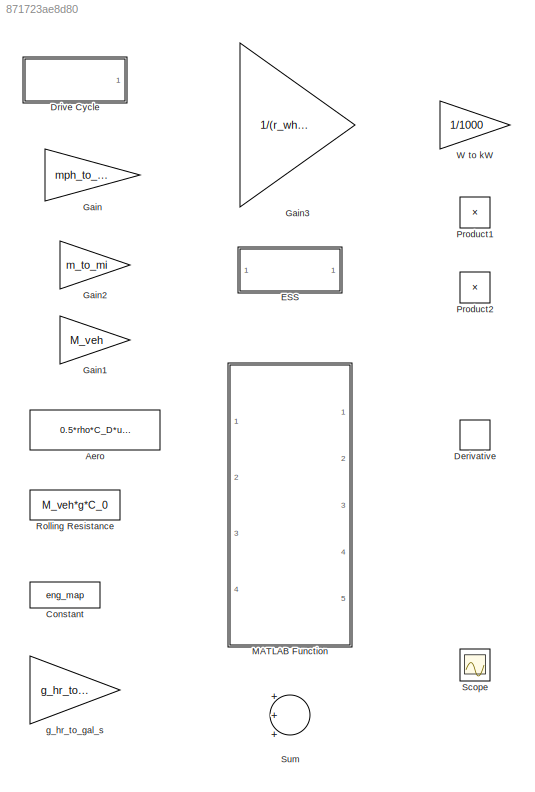
MODEL slx_871723ae8d80
KIND library
CONFIG AbsTol = auto
CONFIG EnableMultiTasking = on
CONFIG FixedStep = auto
CONFIG MaxStep = auto
CONFIG MinStep = auto
CONFIG RelTol = 1e-3
CONFIG SampleTimeConstraint = Unconstrained
CONFIG Solver = VariableStepAuto
CONFIG SolverName = VariableStepAuto
CONFIG StartTime = 0.0
CONFIG StopTime = 10.0
BLOCK [Fcn] Aero
  Expr = 0.5*rho*C_D*u(1)^2
BLOCK [Constant] Constant
  Value = eng_map
BLOCK [Derivative] Derivative
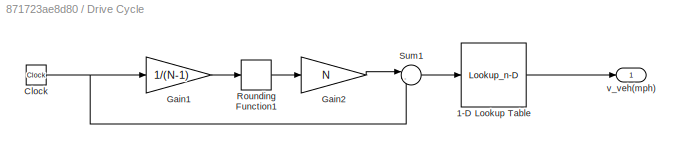
BLOCK [SubSystem] Drive Cycle
  Ports = [0, 1]
  RequestExecContextInheritance = off
BLOCK [Lookup_n-D] Drive Cycle/1-D Lookup Table
  BreakpointsForDimension1 = schedule(:,1)
  InternalRulePriority = Speed
  NumberOfTableDimensions = 1
  Ports = [1, 1]
  RndMeth = Simplest
  Table = schedule(:,2)
BLOCK [Clock] Drive Cycle/Clock
BLOCK [Gain] Drive Cycle/Gain1
  Gain = 1/(N-1)
  OutDataTypeStr = Inherit: Inherit via internal rule
  ParamDataTypeStr = Inherit: Inherit via internal rule
  SaturateOnIntegerOverflow = off
BLOCK [Gain] Drive Cycle/Gain2
  Gain = N
  OutDataTypeStr = Inherit: Inherit via internal rule
  ParamDataTypeStr = Inherit: Inherit via internal rule
  SaturateOnIntegerOverflow = off
BLOCK [Rounding] Drive Cycle/Rounding Function1
BLOCK [Sum] Drive Cycle/Sum1
  IconShape = round
  InputSameDT = off
  Inputs = |-+
  OutDataTypeStr = Inherit: Inherit via internal rule
  Ports = [2, 1]
  SaturateOnIntegerOverflow = off
BLOCK [Outport] Drive Cycle/v_veh(mph)
  IconDisplay = Port number
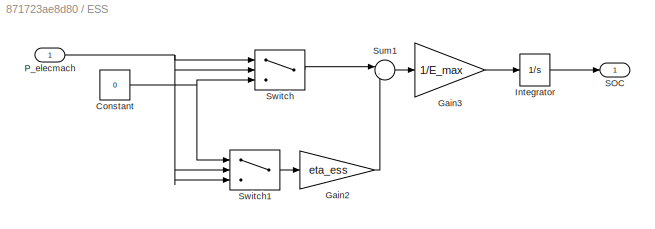
BLOCK [SubSystem] ESS
  Ports = [1, 1]
  RequestExecContextInheritance = off
BLOCK [Constant] ESS/Constant
  Value = 0
BLOCK [Gain] ESS/Gain2
  Gain = eta_ess
  OutDataTypeStr = Inherit: Inherit via internal rule
  ParamDataTypeStr = Inherit: Inherit via internal rule
  SaturateOnIntegerOverflow = off
BLOCK [Gain] ESS/Gain3
  Gain = 1/E_max
  OutDataTypeStr = fixdt('double', 'DataTypeOverride', 'Off')
  ParamDataTypeStr = Inherit: Inherit via internal rule
  SaturateOnIntegerOverflow = off
BLOCK [Integrator] ESS/Integrator
  InitialCondition = SOC_init
  LimitOutput = on
  LowerSaturationLimit = 0
  Ports = [1, 1]
  UpperSaturationLimit = 1
BLOCK [Inport] ESS/P_elecmach
  IconDisplay = Port number
BLOCK [Outport] ESS/SOC
  IconDisplay = Port number
BLOCK [Sum] ESS/Sum1
  IconShape = round
  InputSameDT = off
  Inputs = |--
  OutDataTypeStr = Inherit: Inherit via internal rule
  Ports = [2, 1]
  SaturateOnIntegerOverflow = off
BLOCK [Switch] ESS/Switch
  InputSameDT = off
  OutDataTypeStr = double
  SaturateOnIntegerOverflow = off
BLOCK [Switch] ESS/Switch1
  InputSameDT = off
  OutDataTypeStr = double
  SaturateOnIntegerOverflow = off
BLOCK [Gain] Gain
  Gain = mph_to_mps
  OutDataTypeStr = Inherit: Inherit via internal rule
  ParamDataTypeStr = Inherit: Inherit via internal rule
  SaturateOnIntegerOverflow = off
BLOCK [Gain] Gain1
  Gain = M_veh
  OutDataTypeStr = Inherit: Inherit via internal rule
  ParamDataTypeStr = Inherit: Inherit via internal rule
  SaturateOnIntegerOverflow = off
BLOCK [Gain] Gain2
  Gain = m_to_mi
  OutDataTypeStr = Inherit: Inherit via internal rule
  ParamDataTypeStr = Inherit: Inherit via internal rule
  SaturateOnIntegerOverflow = off
BLOCK [Gain] Gain3
  Gain = 1/(r_wheel*G_diff)
  OutDataTypeStr = Inherit: Inherit via internal rule
  ParamDataTypeStr = Inherit: Inherit via internal rule
  SaturateOnIntegerOverflow = off
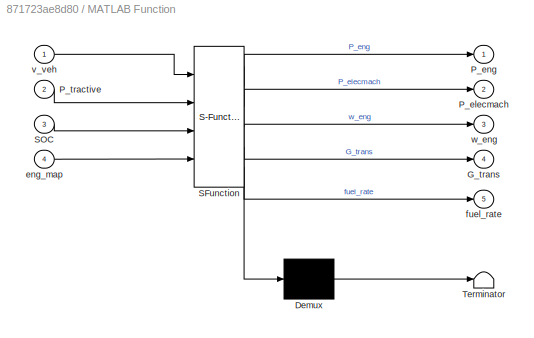
BLOCK [SubSystem] MATLAB Function
  ErrorFcn = Stateflow.Translate.translate
  PermitHierarchicalResolution = ExplicitOnly
  Ports = [4, 5]
  RequestExecContextInheritance = off
  SFBlockType = MATLAB Function
  TreatAsAtomicUnit = on
BLOCK [Demux] MATLAB Function/ Demux 
  Outputs = 1
  Ports = [1, 1]
BLOCK [S-Function] MATLAB Function/ SFunction 
  EnableBusSupport = on
  FunctionName = sf_sfun
  PortCounts = [4 6]
  Ports = [4, 6]
  SFcnIsStateOwnerBlock = off
  SFunctionDeploymentMode = off
  Tag = Stateflow S-Function p1lib 2
BLOCK [Terminator] MATLAB Function/ Terminator 
BLOCK [Outport] MATLAB Function/G_trans
  IconDisplay = Port number
  Port = 4
BLOCK [Outport] MATLAB Function/P_elecmach
  IconDisplay = Port number
  Port = 2
BLOCK [Outport] MATLAB Function/P_eng
  IconDisplay = Port number
BLOCK [Inport] MATLAB Function/P_tractive
  IconDisplay = Port number
  Port = 2
BLOCK [Inport] MATLAB Function/SOC
  IconDisplay = Port number
  Port = 3
BLOCK [Inport] MATLAB Function/eng_map
  IconDisplay = Port number
  Port = 4
BLOCK [Outport] MATLAB Function/fuel_rate
  IconDisplay = Port number
  Port = 5
BLOCK [Inport] MATLAB Function/v_veh
  IconDisplay = Port number
BLOCK [Outport] MATLAB Function/w_eng
  IconDisplay = Port number
  Port = 3
BLOCK [Product] Product1
  InputSameDT = off
  OutDataTypeStr = Inherit: Inherit via internal rule
  Ports = [2, 1]
  RndMeth = Floor
  SaturateOnIntegerOverflow = off
BLOCK [Product] Product2
  InputSameDT = off
  Inputs = */
  OutDataTypeStr = Inherit: Inherit via internal rule
  Ports = [2, 1]
  RndMeth = Floor
  SaturateOnIntegerOverflow = off
BLOCK [Constant] Rolling Resistance
  Value = M_veh*g*C_0
BLOCK [Scope] Scope
  Floating = off
  NumInputPorts = 1
  Ports = [1]
  ScopeSpecificationString = Simulink.scopes.TimeScopeBlockCfg('CurrentConfiguration', extmgr.ConfigurationSet(extmgr.Configuration('Core','General UI',true),extmgr.Configuration('Core','Source UI',true),extmgr.Configuration('Sources','WiredSimulink',true,'DataLoggingSaveFormat','StructureWithTime','DataLoggingDecimation','1','DataLoggingDecimateData',true,'DataLogging',true),extmgr.Configuration('Visuals','Time Domain',true,...<+1719ch>
BLOCK [Sum] Sum
  InputSameDT = off
  Inputs = +++
  OutDataTypeStr = Inherit: Inherit via internal rule
  Ports = [3, 1]
  SaturateOnIntegerOverflow = off
BLOCK [Gain] W to kW
  Gain = 1/1000
  OutDataTypeStr = Inherit: Inherit via internal rule
  ParamDataTypeStr = Inherit: Inherit via internal rule
  SaturateOnIntegerOverflow = off
BLOCK [Gain] g_hr_to_gal_s
  Gain = g_hr_to_gal_s
  OutDataTypeStr = Inherit: Inherit via internal rule
  ParamDataTypeStr = Inherit: Inherit via internal rule
  SaturateOnIntegerOverflow = off
LINE Drive Cycle/1-D Lookup Table:1 -> Drive Cycle/v_veh(mph):1
NET Drive Cycle/Clock:1 -> Drive Cycle/Gain1:1, Drive Cycle/Sum1:2
LINE Drive Cycle/Gain1:1 -> Drive Cycle/Rounding Function1:1
LINE Drive Cycle/Gain2:1 -> Drive Cycle/Sum1:1
LINE Drive Cycle/Rounding Function1:1 -> Drive Cycle/Gain2:1
LINE Drive Cycle/Sum1:1 -> Drive Cycle/1-D Lookup Table:1
NET ESS/Constant:1 -> ESS/Switch1:1, ESS/Switch:3
LINE ESS/Gain2:1 -> ESS/Sum1:2
LINE ESS/Gain3:1 -> ESS/Integrator:1
LINE ESS/Integrator:1 -> ESS/SOC:1
NET ESS/P_elecmach:1 -> ESS/Switch1:2, ESS/Switch1:3, ESS/Switch:1, ESS/Switch:2
LINE ESS/Sum1:1 -> ESS/Gain3:1
LINE ESS/Switch1:1 -> ESS/Gain2:1
LINE ESS/Switch:1 -> ESS/Sum1:1
note: NET lines group one-source signal fan-out (src -> all destinations, sorted); 1:1 wires keep LINE
CHART MATLAB Function states=1 transitions=1
  STATE_LABEL 'eML_blk_kernel()'
  STATE_LABEL 'SCRIPT:\nfunction [P_eng, P_elecmach, w_eng, G_trans, fuel_rate] = fcn(v_veh, P_tractive, SOC, eng_map)\n%#codegen\n\nv_min = 2.19;  % minimum vehicle speed for engine to stay engaged, in m/s\nP_min = 10000; % minimum engine power in W\nP_max = 80000; % maximum engine power\nG_trans_min = 0.3; % minimum transmission gear ratio\nG_diff = 0.25;    % differential gear ratio\nr_wheel = 0.2794; % wheel radius i...<+1210ch>'
